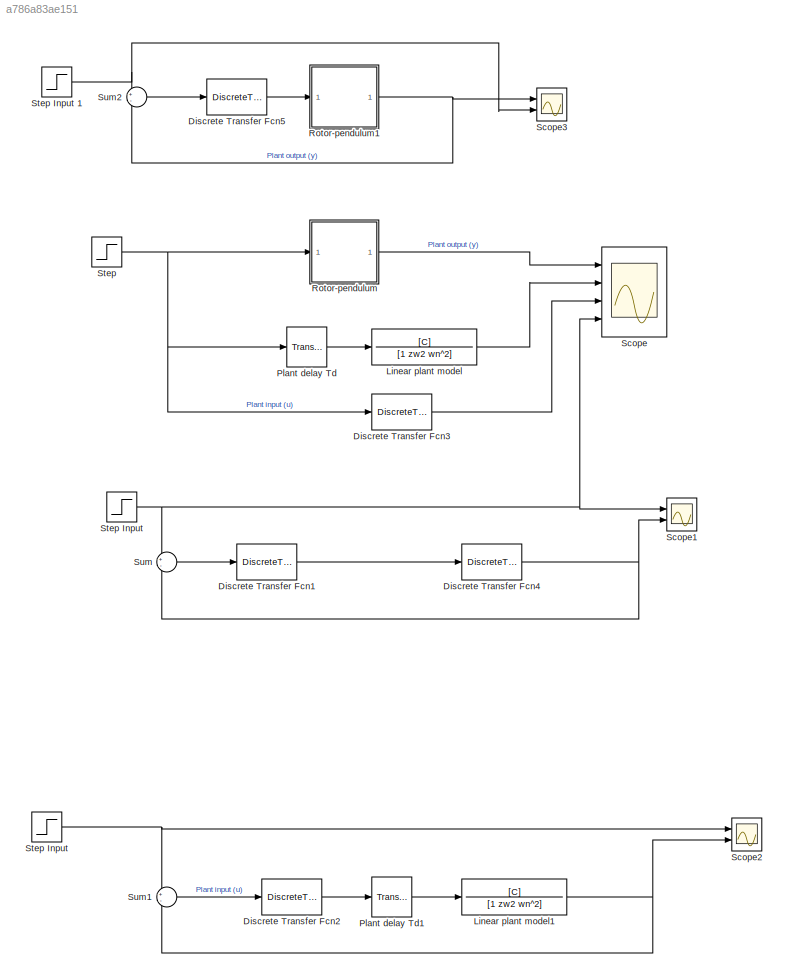
MODEL slx_a786a83ae151
KIND model
CONFIG AbsTol = auto
CONFIG EnableMultiTasking = off
CONFIG FixedStep = auto
CONFIG MaxStep = auto
CONFIG MinStep = auto
CONFIG RelTol = 1e-3
CONFIG SampleTimeConstraint = Unconstrained
CONFIG Solver = VariableStepAuto
CONFIG SolverName = VariableStepAuto
CONFIG StartTime = 0.0
CONFIG StopTime = 10
BLOCK [DiscreteTransferFcn] Discrete Transfer Fcn1
  Denominator = num2
  InputPortMap = u0
  Numerator = num1
  Ports = [1, 1]
  SampleTime = 0.15
BLOCK [DiscreteTransferFcn] Discrete Transfer Fcn2
  Denominator = num2
  InputPortMap = u0
  Numerator = num1
  Ports = [1, 1]
  SampleTime = 0.15
BLOCK [DiscreteTransferFcn] Discrete Transfer Fcn3
  Denominator = den
  InputPortMap = u0
  Numerator = num
  Ports = [1, 1]
  SampleTime = 0.15
BLOCK [DiscreteTransferFcn] Discrete Transfer Fcn4
  Denominator = den
  InputPortMap = u0
  Numerator = num
  Ports = [1, 1]
  SampleTime = 0.15
BLOCK [DiscreteTransferFcn] Discrete Transfer Fcn5
  Denominator = num2
  InputPortMap = u0
  Numerator = num1
  Ports = [1, 1]
  SampleTime = 0.15
BLOCK [TransferFcn] Linear plant model
  Denominator = [1  zw2 wn^2]
  Numerator = [C]
BLOCK [TransferFcn] Linear plant model1
  Denominator = [1  zw2 wn^2]
  Numerator = [C]
BLOCK [TransportDelay] Plant delay Td
  DelayTime = Td
  Ports = [1, 1]
BLOCK [TransportDelay] Plant delay Td1
  DelayTime = Td
  Ports = [1, 1]
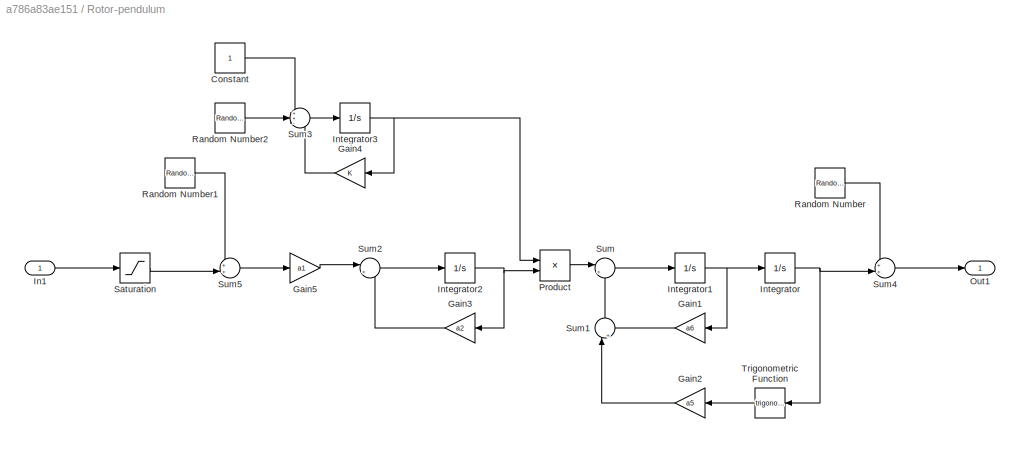
BLOCK [SubSystem] Rotor-pendulum
  Description = Rotor pendulum
  Ports = [1, 1]
  RequestExecContextInheritance = off
BLOCK [Constant] Rotor-pendulum/Constant
BLOCK [Gain] Rotor-pendulum/Gain1
  Gain = a6
  OutDataTypeStr = Inherit: Inherit via internal rule
  ParamDataTypeStr = Inherit: Inherit via internal rule
  SaturateOnIntegerOverflow = off
BLOCK [Gain] Rotor-pendulum/Gain2
  Gain = a5
  OutDataTypeStr = Inherit: Inherit via internal rule
  ParamDataTypeStr = Inherit: Inherit via internal rule
  SaturateOnIntegerOverflow = off
BLOCK [Gain] Rotor-pendulum/Gain3
  Gain = a2
  OutDataTypeStr = Inherit: Inherit via internal rule
  ParamDataTypeStr = Inherit: Inherit via internal rule
  SaturateOnIntegerOverflow = off
BLOCK [Gain] Rotor-pendulum/Gain4
  OutDataTypeStr = Inherit: Inherit via internal rule
  ParamDataTypeStr = Inherit: Inherit via internal rule
  SaturateOnIntegerOverflow = off
BLOCK [Gain] Rotor-pendulum/Gain5
  Gain = a1
  OutDataTypeStr = Inherit: Inherit via internal rule
  ParamDataTypeStr = Inherit: Inherit via internal rule
  SaturateOnIntegerOverflow = off
BLOCK [Inport] Rotor-pendulum/In1
  IconDisplay = Port number
BLOCK [Integrator] Rotor-pendulum/Integrator
  Ports = [1, 1]
BLOCK [Integrator] Rotor-pendulum/Integrator1
  Ports = [1, 1]
BLOCK [Integrator] Rotor-pendulum/Integrator2
  Ports = [1, 1]
BLOCK [Integrator] Rotor-pendulum/Integrator3
  InitialCondition = 1
  Ports = [1, 1]
BLOCK [Outport] Rotor-pendulum/Out1
  IconDisplay = Port number
BLOCK [Product] Rotor-pendulum/Product
  InputSameDT = off
  OutDataTypeStr = Inherit: Inherit via internal rule
  Ports = [2, 1]
  RndMeth = Floor
  SaturateOnIntegerOverflow = off
BLOCK [RandomNumber] Rotor-pendulum/Random Number
  SampleTime = 0.001
  Seed = round(cputime*100)
  Variance = 0.005^2
BLOCK [RandomNumber] Rotor-pendulum/Random Number1
  SampleTime = 0.001
  Seed = round(cputime*100)
  Variance = 0.5^2
BLOCK [RandomNumber] Rotor-pendulum/Random Number2
  SampleTime = 0.001
  Seed = round(cputime*100)
  Variance = 0.5^2
BLOCK [Saturate] Rotor-pendulum/Saturation
  InputPortMap = u0
  LowerLimit = -15
  Ports = [1, 1]
  UpperLimit = 15
BLOCK [Sum] Rotor-pendulum/Sum
  IconShape = round
  InputSameDT = off
  Inputs = |+-
  OutDataTypeStr = Inherit: Inherit via internal rule
  Ports = [2, 1]
  SaturateOnIntegerOverflow = off
BLOCK [Sum] Rotor-pendulum/Sum1
  IconShape = round
  InputSameDT = off
  Inputs = |++
  OutDataTypeStr = Inherit: Inherit via internal rule
  Ports = [2, 1]
  SaturateOnIntegerOverflow = off
BLOCK [Sum] Rotor-pendulum/Sum2
  IconShape = round
  InputSameDT = off
  Inputs = |+-
  OutDataTypeStr = Inherit: Inherit via internal rule
  Ports = [2, 1]
  SaturateOnIntegerOverflow = off
BLOCK [Sum] Rotor-pendulum/Sum3
  IconShape = round
  InputSameDT = off
  Inputs = ++-
  OutDataTypeStr = Inherit: Inherit via internal rule
  Ports = [3, 1]
  SaturateOnIntegerOverflow = off
BLOCK [Sum] Rotor-pendulum/Sum4
  IconShape = round
  InputSameDT = off
  Inputs = ++|
  OutDataTypeStr = Inherit: Inherit via internal rule
  Ports = [2, 1]
  SaturateOnIntegerOverflow = off
BLOCK [Sum] Rotor-pendulum/Sum5
  IconShape = round
  InputSameDT = off
  Inputs = ++|
  OutDataTypeStr = Inherit: Inherit via internal rule
  Ports = [2, 1]
  SaturateOnIntegerOverflow = off
BLOCK [Trigonometry] Rotor-pendulum/Trigonometric Function
  Ports = [1, 1]
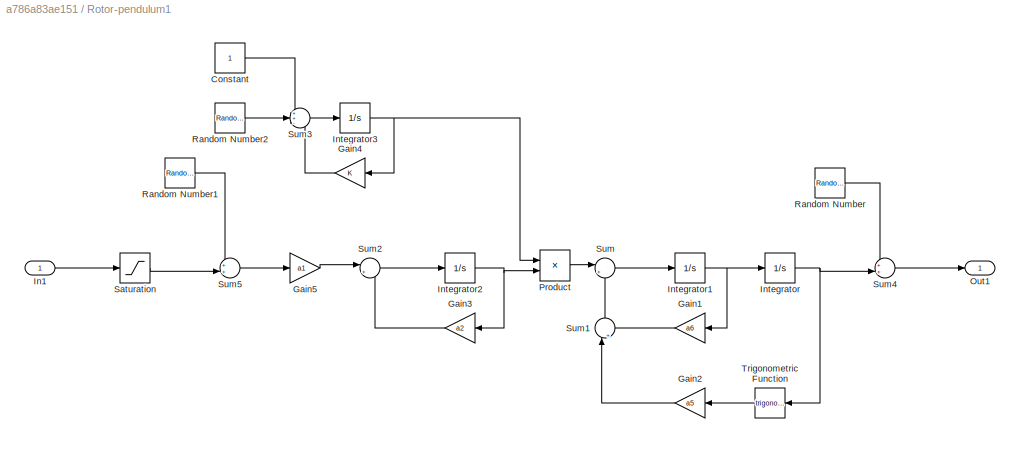
BLOCK [SubSystem] Rotor-pendulum1
  Description = Rotor pendulum
  Ports = [1, 1]
  RequestExecContextInheritance = off
BLOCK [Constant] Rotor-pendulum1/Constant
BLOCK [Gain] Rotor-pendulum1/Gain1
  Gain = a6
  OutDataTypeStr = Inherit: Inherit via internal rule
  ParamDataTypeStr = Inherit: Inherit via internal rule
  SaturateOnIntegerOverflow = off
BLOCK [Gain] Rotor-pendulum1/Gain2
  Gain = a5
  OutDataTypeStr = Inherit: Inherit via internal rule
  ParamDataTypeStr = Inherit: Inherit via internal rule
  SaturateOnIntegerOverflow = off
BLOCK [Gain] Rotor-pendulum1/Gain3
  Gain = a2
  OutDataTypeStr = Inherit: Inherit via internal rule
  ParamDataTypeStr = Inherit: Inherit via internal rule
  SaturateOnIntegerOverflow = off
BLOCK [Gain] Rotor-pendulum1/Gain4
  OutDataTypeStr = Inherit: Inherit via internal rule
  ParamDataTypeStr = Inherit: Inherit via internal rule
  SaturateOnIntegerOverflow = off
BLOCK [Gain] Rotor-pendulum1/Gain5
  Gain = a1
  OutDataTypeStr = Inherit: Inherit via internal rule
  ParamDataTypeStr = Inherit: Inherit via internal rule
  SaturateOnIntegerOverflow = off
BLOCK [Inport] Rotor-pendulum1/In1
  IconDisplay = Port number
BLOCK [Integrator] Rotor-pendulum1/Integrator
  Ports = [1, 1]
BLOCK [Integrator] Rotor-pendulum1/Integrator1
  Ports = [1, 1]
BLOCK [Integrator] Rotor-pendulum1/Integrator2
  Ports = [1, 1]
BLOCK [Integrator] Rotor-pendulum1/Integrator3
  InitialCondition = 1
  Ports = [1, 1]
BLOCK [Outport] Rotor-pendulum1/Out1
  IconDisplay = Port number
BLOCK [Product] Rotor-pendulum1/Product
  InputSameDT = off
  OutDataTypeStr = Inherit: Inherit via internal rule
  Ports = [2, 1]
  RndMeth = Floor
  SaturateOnIntegerOverflow = off
BLOCK [RandomNumber] Rotor-pendulum1/Random Number
  SampleTime = 0.001
  Seed = round(cputime*100)
  Variance = 0.005^2
BLOCK [RandomNumber] Rotor-pendulum1/Random Number1
  SampleTime = 0.001
  Seed = round(cputime*100)
  Variance = 0.5^2
BLOCK [RandomNumber] Rotor-pendulum1/Random Number2
  SampleTime = 0.001
  Seed = round(cputime*100)
  Variance = 0.5^2
BLOCK [Saturate] Rotor-pendulum1/Saturation
  InputPortMap = u0
  LowerLimit = -15
  Ports = [1, 1]
  UpperLimit = 15
BLOCK [Sum] Rotor-pendulum1/Sum
  IconShape = round
  InputSameDT = off
  Inputs = |+-
  OutDataTypeStr = Inherit: Inherit via internal rule
  Ports = [2, 1]
  SaturateOnIntegerOverflow = off
BLOCK [Sum] Rotor-pendulum1/Sum1
  IconShape = round
  InputSameDT = off
  Inputs = |++
  OutDataTypeStr = Inherit: Inherit via internal rule
  Ports = [2, 1]
  SaturateOnIntegerOverflow = off
BLOCK [Sum] Rotor-pendulum1/Sum2
  IconShape = round
  InputSameDT = off
  Inputs = |+-
  OutDataTypeStr = Inherit: Inherit via internal rule
  Ports = [2, 1]
  SaturateOnIntegerOverflow = off
BLOCK [Sum] Rotor-pendulum1/Sum3
  IconShape = round
  InputSameDT = off
  Inputs = ++-
  OutDataTypeStr = Inherit: Inherit via internal rule
  Ports = [3, 1]
  SaturateOnIntegerOverflow = off
BLOCK [Sum] Rotor-pendulum1/Sum4
  IconShape = round
  InputSameDT = off
  Inputs = ++|
  OutDataTypeStr = Inherit: Inherit via internal rule
  Ports = [2, 1]
  SaturateOnIntegerOverflow = off
BLOCK [Sum] Rotor-pendulum1/Sum5
  IconShape = round
  InputSameDT = off
  Inputs = ++|
  OutDataTypeStr = Inherit: Inherit via internal rule
  Ports = [2, 1]
  SaturateOnIntegerOverflow = off
BLOCK [Trigonometry] Rotor-pendulum1/Trigonometric Function
  Ports = [1, 1]
BLOCK [Scope] Scope
  Floating = off
  NumInputPorts = 4
  Ports = [4]
  ScopeSpecificationString = Simulink.scopes.TimeScopeBlockCfg('CurrentConfiguration', extmgr.ConfigurationSet(extmgr.Configuration('Core','General UI',true),extmgr.Configuration('Core','Source UI',true),extmgr.Configuration('Sources','WiredSimulink',true),extmgr.Configuration('Visuals','Time Domain',true,'SerializedDisplays',{struct('MinYLimReal','-0.10822','MaxYLimReal','0.92668','YLabelReal','','MinYLimMag','0.00000','MaxY...<+1928ch>
BLOCK [Scope] Scope1
  Floating = off
  NumInputPorts = 2
  Ports = [2]
  ScopeSpecificationString = Simulink.scopes.TimeScopeBlockCfg('CurrentConfiguration', extmgr.ConfigurationSet(extmgr.Configuration('Core','General UI',true),extmgr.Configuration('Core','Source UI',true),extmgr.Configuration('Sources','WiredSimulink',true,'DataLoggingVariableName','ScopeData1'),extmgr.Configuration('Visuals','Time Domain',true,'SerializedDisplays',{struct('MinYLimReal','0.00000','MaxYLimReal','0.55452','YLabe...<+1746ch>
BLOCK [Scope] Scope2
  Floating = off
  NumInputPorts = 2
  Ports = [2]
  ScopeSpecificationString = Simulink.scopes.TimeScopeBlockCfg('CurrentConfiguration', extmgr.ConfigurationSet(extmgr.Configuration('Core','General UI',true),extmgr.Configuration('Core','Source UI',true),extmgr.Configuration('Sources','WiredSimulink',true,'DataLoggingVariableName','ScopeData2'),extmgr.Configuration('Visuals','Time Domain',true,'SerializedDisplays',{struct('MinYLimReal','-0.01939','MaxYLimReal','0.54607','YLab...<+1464ch>
BLOCK [Scope] Scope3
  Floating = off
  NumInputPorts = 2
  Ports = [2]
  ScopeSpecificationString = Simulink.scopes.TimeScopeBlockCfg('CurrentConfiguration', extmgr.ConfigurationSet(extmgr.Configuration('Core','General UI',true),extmgr.Configuration('Core','Source UI',true),extmgr.Configuration('Sources','WiredSimulink',true,'DataLoggingVariableName','ScopeData1'),extmgr.Configuration('Visuals','Time Domain',true,'SerializedDisplays',{struct('MinYLimReal','0.49966','MaxYLimReal','0.57388','YLabe...<+1741ch>
BLOCK [Step] Step
  After = 10
  SampleTime = 0
BLOCK [Step] Step Input 
  After = 0.5
  SampleTime = 0
BLOCK [Step] Step Input 1
  After = 0.5
  SampleTime = 0
BLOCK [Sum] Sum
  IconShape = round
  InputSameDT = off
  Inputs = +-
  OutDataTypeStr = Inherit: Inherit via internal rule
  Ports = [2, 1]
  SaturateOnIntegerOverflow = off
BLOCK [Sum] Sum1
  IconShape = round
  InputSameDT = off
  Inputs = +-
  OutDataTypeStr = Inherit: Inherit via internal rule
  Ports = [2, 1]
  SaturateOnIntegerOverflow = off
BLOCK [Sum] Sum2
  IconShape = round
  InputSameDT = off
  Inputs = +-
  OutDataTypeStr = Inherit: Inherit via internal rule
  Ports = [2, 1]
  SaturateOnIntegerOverflow = off
LINE Discrete Transfer Fcn1:1 -> Discrete Transfer Fcn4:1
LINE Discrete Transfer Fcn2:1 -> Plant delay Td1:1
LINE Discrete Transfer Fcn3:1 -> Scope:3
NET Discrete Transfer Fcn4:1 -> Scope1:2, Sum:2
LINE Discrete Transfer Fcn5:1 -> Rotor-pendulum1:1
NET Linear plant model1:1 -> Scope2:2, Sum1:2
LINE Linear plant model:1 -> Scope:2
LINE Plant delay Td1:1 -> Linear plant model1:1
LINE Plant delay Td:1 -> Linear plant model:1
LINE Rotor-pendulum/Constant:1 -> Rotor-pendulum/Sum3:1
LINE Rotor-pendulum/Gain1:1 -> Rotor-pendulum/Sum1:2
LINE Rotor-pendulum/Gain2:1 -> Rotor-pendulum/Sum1:1
LINE Rotor-pendulum/Gain3:1 -> Rotor-pendulum/Sum2:2
LINE Rotor-pendulum/Gain4:1 -> Rotor-pendulum/Sum3:3
LINE Rotor-pendulum/Gain5:1 -> Rotor-pendulum/Sum2:1
LINE Rotor-pendulum/In1:1 -> Rotor-pendulum/Saturation:1
NET Rotor-pendulum/Integrator1:1 -> Rotor-pendulum/Gain1:1, Rotor-pendulum/Integrator:1
NET Rotor-pendulum/Integrator2:1 -> Rotor-pendulum/Gain3:1, Rotor-pendulum/Product:2
NET Rotor-pendulum/Integrator3:1 -> Rotor-pendulum/Gain4:1, Rotor-pendulum/Product:1
NET Rotor-pendulum/Integrator:1 -> Rotor-pendulum/Sum4:2, Rotor-pendulum/Trigonometric Function:1
LINE Rotor-pendulum/Product:1 -> Rotor-pendulum/Sum:1
LINE Rotor-pendulum/Random Number1:1 -> Rotor-pendulum/Sum5:1
LINE Rotor-pendulum/Random Number2:1 -> Rotor-pendulum/Sum3:2
LINE Rotor-pendulum/Random Number:1 -> Rotor-pendulum/Sum4:1
LINE Rotor-pendulum/Saturation:1 -> Rotor-pendulum/Sum5:2
LINE Rotor-pendulum/Sum1:1 -> Rotor-pendulum/Sum:2
LINE Rotor-pendulum/Sum2:1 -> Rotor-pendulum/Integrator2:1
LINE Rotor-pendulum/Sum3:1 -> Rotor-pendulum/Integrator3:1
LINE Rotor-pendulum/Sum4:1 -> Rotor-pendulum/Out1:1
LINE Rotor-pendulum/Sum5:1 -> Rotor-pendulum/Gain5:1
LINE Rotor-pendulum/Sum:1 -> Rotor-pendulum/Integrator1:1
LINE Rotor-pendulum/Trigonometric Function:1 -> Rotor-pendulum/Gain2:1
LINE Rotor-pendulum1/Constant:1 -> Rotor-pendulum1/Sum3:1
LINE Rotor-pendulum1/Gain1:1 -> Rotor-pendulum1/Sum1:2
LINE Rotor-pendulum1/Gain2:1 -> Rotor-pendulum1/Sum1:1
LINE Rotor-pendulum1/Gain3:1 -> Rotor-pendulum1/Sum2:2
LINE Rotor-pendulum1/Gain4:1 -> Rotor-pendulum1/Sum3:3
LINE Rotor-pendulum1/Gain5:1 -> Rotor-pendulum1/Sum2:1
LINE Rotor-pendulum1/In1:1 -> Rotor-pendulum1/Saturation:1
NET Rotor-pendulum1/Integrator1:1 -> Rotor-pendulum1/Gain1:1, Rotor-pendulum1/Integrator:1
NET Rotor-pendulum1/Integrator2:1 -> Rotor-pendulum1/Gain3:1, Rotor-pendulum1/Product:2
NET Rotor-pendulum1/Integrator3:1 -> Rotor-pendulum1/Gain4:1, Rotor-pendulum1/Product:1
NET Rotor-pendulum1/Integrator:1 -> Rotor-pendulum1/Sum4:2, Rotor-pendulum1/Trigonometric Function:1
LINE Rotor-pendulum1/Product:1 -> Rotor-pendulum1/Sum:1
LINE Rotor-pendulum1/Random Number1:1 -> Rotor-pendulum1/Sum5:1
LINE Rotor-pendulum1/Random Number2:1 -> Rotor-pendulum1/Sum3:2
LINE Rotor-pendulum1/Random Number:1 -> Rotor-pendulum1/Sum4:1
LINE Rotor-pendulum1/Saturation:1 -> Rotor-pendulum1/Sum5:2
LINE Rotor-pendulum1/Sum1:1 -> Rotor-pendulum1/Sum:2
LINE Rotor-pendulum1/Sum2:1 -> Rotor-pendulum1/Integrator2:1
LINE Rotor-pendulum1/Sum3:1 -> Rotor-pendulum1/Integrator3:1
LINE Rotor-pendulum1/Sum4:1 -> Rotor-pendulum1/Out1:1
LINE Rotor-pendulum1/Sum5:1 -> Rotor-pendulum1/Gain5:1
LINE Rotor-pendulum1/Sum:1 -> Rotor-pendulum1/Integrator1:1
LINE Rotor-pendulum1/Trigonometric Function:1 -> Rotor-pendulum1/Gain2:1
NET Rotor-pendulum1:1 -> Scope3:1, Sum2:2
LINE Rotor-pendulum:1 -> Scope:1
NET Step Input 1:1 -> Scope3:2, Sum2:1
NET Step Input :1 -> Scope1:1, Scope2:1, Scope:4, Sum1:1, Sum:1
NET Step:1 -> Discrete Transfer Fcn3:1, Plant delay Td:1, Rotor-pendulum:1
LINE Sum1:1 -> Discrete Transfer Fcn2:1
LINE Sum2:1 -> Discrete Transfer Fcn5:1
LINE Sum:1 -> Discrete Transfer Fcn1:1
note: NET lines group one-source signal fan-out (src -> all destinations, sorted); 1:1 wires keep LINE
